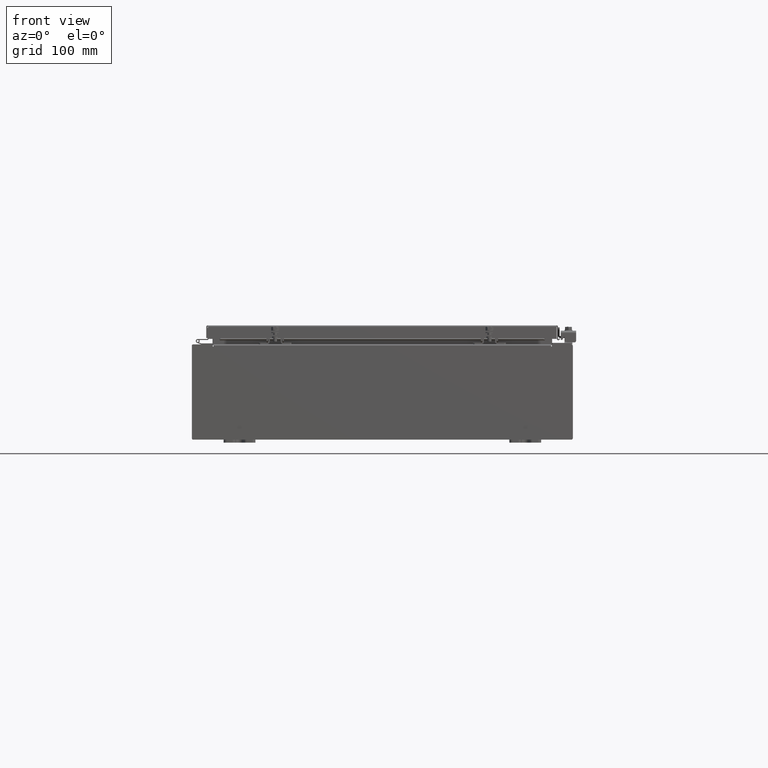
[diagram: clean part render]
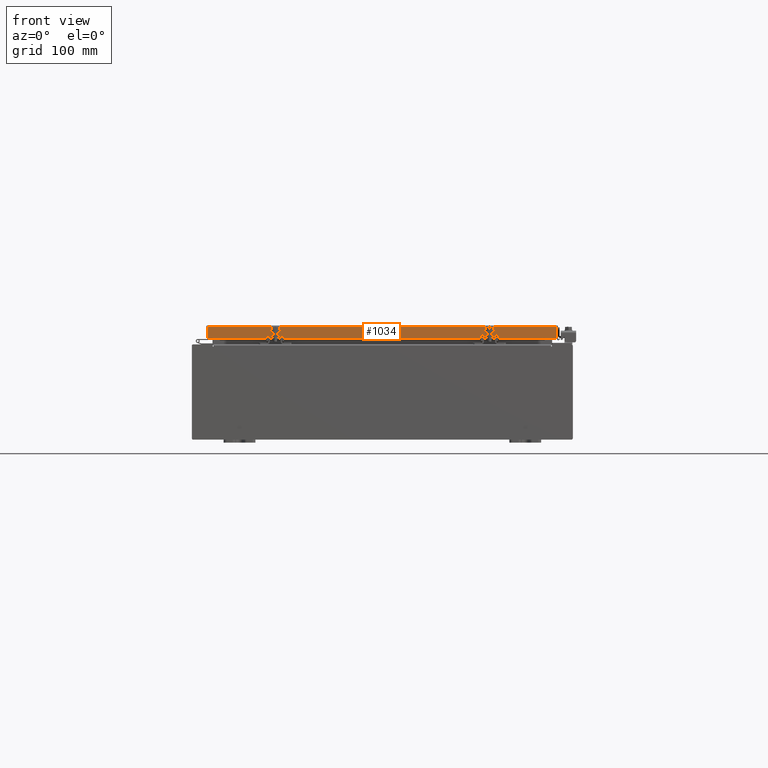
[diagram: same view with one face highlighted and labeled with its STEP entity id]
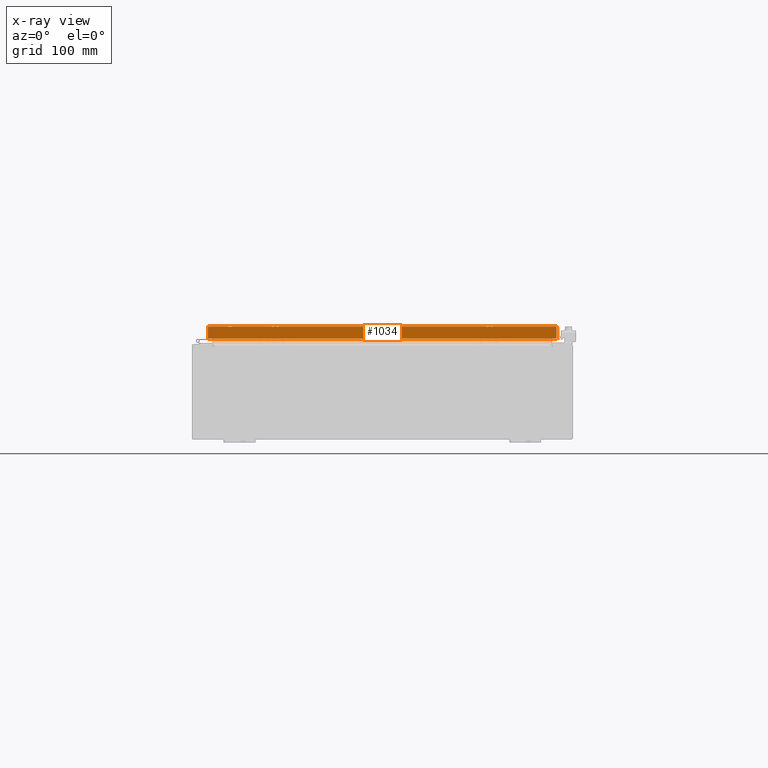
[diagram: x-ray of the same camera — body ghosted, the highlighted face saturated]
A machine part, front view. The second image highlights one B-rep face of the part: STEP entity #1034.
The next image is the same camera in x-ray: the body ghosted, the highlighted face saturated — about 0% of this face is hidden behind the body in this view.
In plain terms, the highlighted planar face has unit normal (-0, 1, -0).
Its self-contained STEP definition (entity closure, byte-faithful):
#736 = VECTOR ( 'NONE', #19494, 39.37007874015748100 ) ;
#1034 = ADVANCED_FACE ( 'NONE', ( #10297 ), #29499, .F. ) ;
#1219 = ORIENTED_EDGE ( 'NONE', *, *, #14312, .F. ) ;
#2094 = CARTESIAN_POINT ( 'NONE',  ( 11.07799999999999600, -17.09399999999999800, -0.8499999999999996400 ) ) ;
#2380 = DIRECTION ( 'NONE',  ( -0.0000000000000000000, -2.818880942772360500E-015, -1.000000000000000000 ) ) ;
#2448 = VECTOR ( 'NONE', #32942, 39.37007874015748100 ) ;
#3354 = VERTEX_POINT ( 'NONE', #33034 ) ;
#3968 = VECTOR ( 'NONE', #13622, 39.37007874015748100 ) ;
#4021 = AXIS2_PLACEMENT_3D ( 'NONE', #34315, #24188, #32777 ) ;
#5120 = EDGE_LOOP ( 'NONE', ( #27561, #11927, #1219, #23611, #9199, #5741 ) ) ;
#5741 = ORIENTED_EDGE ( 'NONE', *, *, #16732, .F. ) ;
#7127 = EDGE_CURVE ( 'NONE', #23633, #7417, #24093, .T. ) ;
#7417 = VERTEX_POINT ( 'NONE', #28130 ) ;
#9199 = ORIENTED_EDGE ( 'NONE', *, *, #21376, .F. ) ;
#9485 = LINE ( 'NONE', #2094, #736 ) ;
#9603 = VECTOR ( 'NONE', #36239, 39.37007874015748100 ) ;
#9826 = LINE ( 'NONE', #11318, #31514 ) ;
#10278 = CARTESIAN_POINT ( 'NONE',  ( -10.98915786437626900, -17.09399999999999800, 4.844676449176230100E-014 ) ) ;
#10297 = FACE_OUTER_BOUND ( 'NONE', #5120, .T. ) ;
#11318 = CARTESIAN_POINT ( 'NONE',  ( 10.98915786437626500, -17.09399999999999800, -0.07469999999999978000 ) ) ;
#11927 = ORIENTED_EDGE ( 'NONE', *, *, #34873, .T. ) ;
#12996 = CARTESIAN_POINT ( 'NONE',  ( 11.07799999999999600, -17.09399999999999800, -0.08770000000000007000 ) ) ;
#13622 = DIRECTION ( 'NONE',  ( 0.0000000000000000000, -2.818880942772360500E-015, -1.000000000000000000 ) ) ;
#14312 = EDGE_CURVE ( 'NONE', #3354, #26239, #9485, .T. ) ;
#16480 = CARTESIAN_POINT ( 'NONE',  ( 11.07799999999999600, -17.09399999999999800, -0.8499999999999996400 ) ) ;
#16732 = EDGE_CURVE ( 'NONE', #7417, #27539, #9826, .T. ) ;
#17756 = LINE ( 'NONE', #16480, #2448 ) ;
#19494 = DIRECTION ( 'NONE',  ( -1.000000000000000000, 4.379057701015053300E-047, 1.233005954894504400E-016 ) ) ;
#21147 = CARTESIAN_POINT ( 'NONE',  ( 10.98915786437626500, -17.09399999999999800, -0.8499999999999996400 ) ) ;
#21376 = EDGE_CURVE ( 'NONE', #27539, #32298, #17756, .T. ) ;
#21395 = LINE ( 'NONE', #42614, #9603 ) ;
#23070 = VECTOR ( 'NONE', #41413, 39.37007874015748100 ) ;
#23611 = ORIENTED_EDGE ( 'NONE', *, *, #41597, .F. ) ;
#23633 = VERTEX_POINT ( 'NONE', #32975 ) ;
#24093 = LINE ( 'NONE', #12996, #23070 ) ;
#24188 = DIRECTION ( 'NONE',  ( -3.475696988576954900E-031, 1.000000000000000000, -2.818880942772360500E-015 ) ) ;
#26239 = VERTEX_POINT ( 'NONE', #37154 ) ;
#27539 = VERTEX_POINT ( 'NONE', #21147 ) ;
#27561 = ORIENTED_EDGE ( 'NONE', *, *, #7127, .F. ) ;
#28130 = CARTESIAN_POINT ( 'NONE',  ( 10.98915786437626700, -17.09399999999999800, -0.08769999999999897300 ) ) ;
#29499 = PLANE ( 'NONE',  #4021 ) ;
#30202 = LINE ( 'NONE', #10278, #3968 ) ;
#31514 = VECTOR ( 'NONE', #2380, 39.37007874015748100 ) ;
#32298 = VERTEX_POINT ( 'NONE', #42088 ) ;
#32777 = DIRECTION ( 'NONE',  ( 0.0000000000000000000, 2.818880942772360500E-015, 1.000000000000000000 ) ) ;
#32942 = DIRECTION ( 'NONE',  ( -1.000000000000000000, 4.379057701015053300E-047, 1.233005954894504400E-016 ) ) ;
#32975 = CARTESIAN_POINT ( 'NONE',  ( -10.98915786437627200, -17.09399999999999800, -0.08769999999999787700 ) ) ;
#33034 = CARTESIAN_POINT ( 'NONE',  ( -10.23915786437627100, -17.09399999999999400, -0.8500000000000000900 ) ) ;
#34315 = CARTESIAN_POINT ( 'NONE',  ( 5.941356432273445000E-030, -17.09399999999999800, 4.844676449176230100E-014 ) ) ;
#34873 = EDGE_CURVE ( 'NONE', #23633, #26239, #30202, .T. ) ;
#36239 = DIRECTION ( 'NONE',  ( -1.000000000000000000, 0.0000000000000000000, 0.0000000000000000000 ) ) ;
#37154 = CARTESIAN_POINT ( 'NONE',  ( -10.98915786437627200, -17.09399999999999800, -0.8499999999999969800 ) ) ;
#41413 = DIRECTION ( 'NONE',  ( 1.000000000000000000, 6.951393977153911800E-032, -9.864047639156036200E-017 ) ) ;
#41597 = EDGE_CURVE ( 'NONE', #32298, #3354, #21395, .T. ) ;
#42088 = CARTESIAN_POINT ( 'NONE',  ( 10.23915786437626200, -17.09399999999999400, -0.8500000000000000900 ) ) ;
#42614 = CARTESIAN_POINT ( 'NONE',  ( 10.23915786437626200, -17.09399999999999400, -0.8500000000000000900 ) ) ;